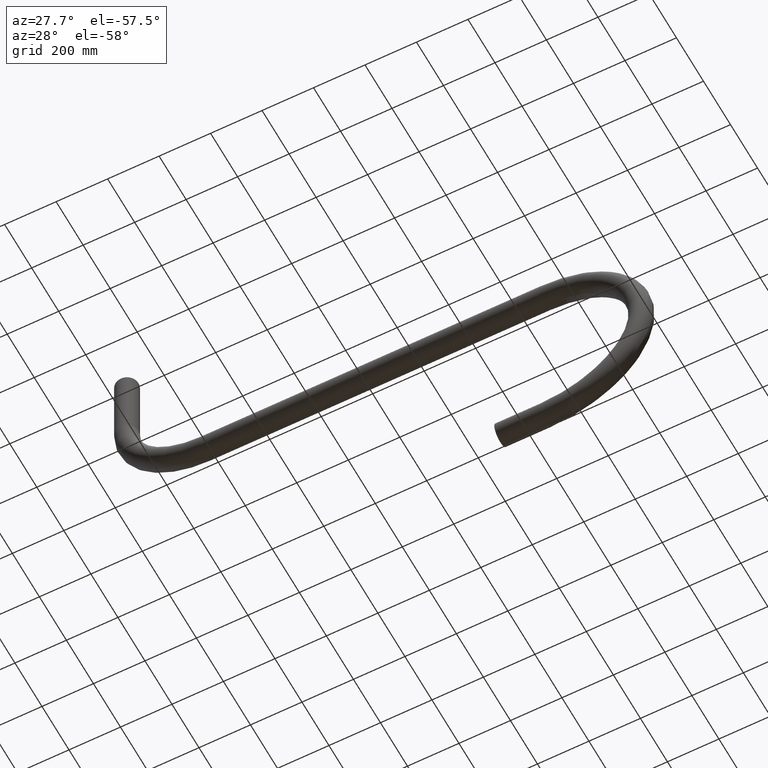
[diagram: clean part render]
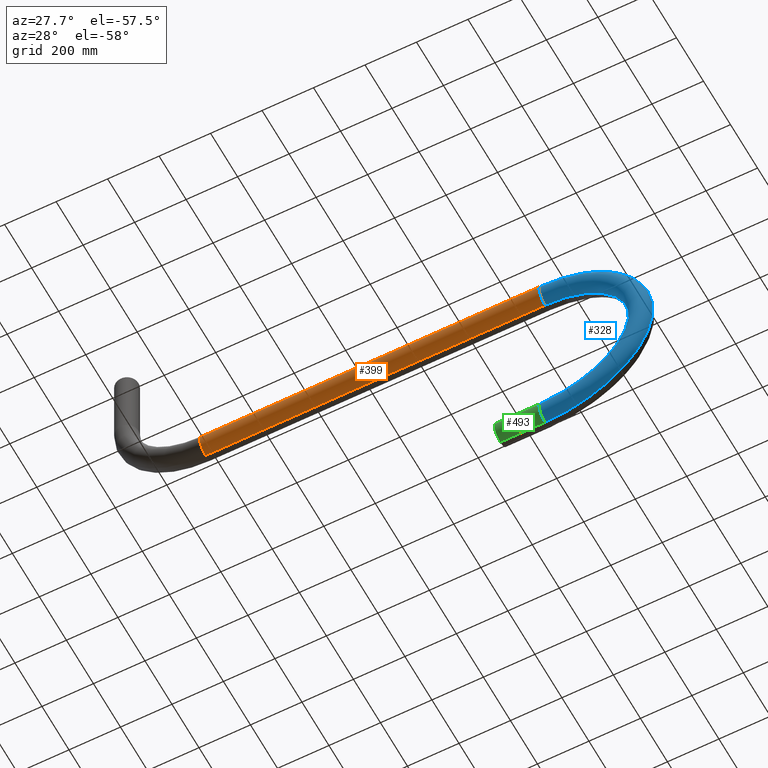
[diagram: same view with three faces highlighted in distinct colors, each labeled with its STEP entity id]
A machine part, auxiliary view with three faces highlighted in distinct colors.
Their STEP definitions:

[orange] entity #399 — the highlighted cylindrical surface (edge-blend (fillet) strip) has radius 44.45 mm, axis along (-1, -0, 0).
#11 = VERTEX_POINT ( 'NONE', #35 ) ;
#35 = CARTESIAN_POINT ( 'NONE',  ( -659.5000000000000000, 0.000000000000000000, 44.45000000000000995 ) ) ;
#51 = DIRECTION ( 'NONE',  ( 1.000000000000000000, 0.000000000000000000, -6.123233995736768501E-17 ) ) ;
#92 = DIRECTION ( 'NONE',  ( -1.000000000000000000, -0.000000000000000000, 6.123233995736768501E-17 ) ) ;
#107 = AXIS2_PLACEMENT_3D ( 'NONE', #354, #51, #348 ) ;
#120 = DIRECTION ( 'NONE',  ( -1.000000000000000000, -0.000000000000000000, 6.123233995736768501E-17 ) ) ;
#129 = VECTOR ( 'NONE', #120, 1000.000000000000000 ) ;
#131 = LINE ( 'NONE', #626, #129 ) ;
#134 = LINE ( 'NONE', #593, #526 ) ;
#136 = DIRECTION ( 'NONE',  ( 1.000000000000000000, 0.000000000000000000, -1.820037745287141918E-16 ) ) ;
#171 = FACE_OUTER_BOUND ( 'NONE', #235, .T. ) ;
#235 = EDGE_LOOP ( 'NONE', ( #556, #604, #302, #564 ) ) ;
#296 = VERTEX_POINT ( 'NONE', #312 ) ;
#302 = ORIENTED_EDGE ( 'NONE', *, *, #565, .T. ) ;
#312 = CARTESIAN_POINT ( 'NONE',  ( 659.5000000000000000, 0.000000000000000000, 44.44999999999995310 ) ) ;
#330 = DIRECTION ( 'NONE',  ( 0.000000000000000000, 0.000000000000000000, 1.000000000000000000 ) ) ;
#348 = DIRECTION ( 'NONE',  ( 0.000000000000000000, 0.000000000000000000, 1.000000000000000000 ) ) ;
#354 = CARTESIAN_POINT ( 'NONE',  ( 659.5000000000000000, 0.000000000000000000, -5.551115123125782702E-14 ) ) ;
#361 = CIRCLE ( 'NONE', #107, 44.45000000000000995 ) ;
#369 = VERTEX_POINT ( 'NONE', #424 ) ;
#378 = EDGE_CURVE ( 'NONE', #369, #459, #131, .T. ) ;
#381 = CYLINDRICAL_SURFACE ( 'NONE', #405, 44.45000000000000995 ) ;
#399 = ADVANCED_FACE ( 'NONE', ( #171 ), #381, .T. ) ;
#405 = AXIS2_PLACEMENT_3D ( 'NONE', #582, #622, #330 ) ;
#424 = CARTESIAN_POINT ( 'NONE',  ( 659.5000000000000000, 5.443555022209997530E-15, -44.45000000000006679 ) ) ;
#436 = CARTESIAN_POINT ( 'NONE',  ( -659.5000000000000000, 5.443555022209989642E-15, -44.45000000000000995 ) ) ;
#446 = DIRECTION ( 'NONE',  ( 0.000000000000000000, 0.000000000000000000, -1.000000000000000000 ) ) ;
#459 = VERTEX_POINT ( 'NONE', #436 ) ;
#487 = AXIS2_PLACEMENT_3D ( 'NONE', #597, #136, #446 ) ;
#492 = EDGE_CURVE ( 'NONE', #11, #459, #603, .T. ) ;
#526 = VECTOR ( 'NONE', #92, 1000.000000000000000 ) ;
#556 = ORIENTED_EDGE ( 'NONE', *, *, #378, .F. ) ;
#564 = ORIENTED_EDGE ( 'NONE', *, *, #492, .T. ) ;
#565 = EDGE_CURVE ( 'NONE', #296, #11, #134, .T. ) ;
#582 = CARTESIAN_POINT ( 'NONE',  ( 659.4999999999998863, 0.000000000000000000, -2.465190328815661892E-29 ) ) ;
#593 = CARTESIAN_POINT ( 'NONE',  ( 659.4999999999998863, 0.000000000000000000, 44.45000000000000995 ) ) ;
#597 = CARTESIAN_POINT ( 'NONE',  ( -659.5000000000000000, 0.000000000000000000, 0.000000000000000000 ) ) ;
#603 = CIRCLE ( 'NONE', #487, 44.45000000000000995 ) ;
#604 = ORIENTED_EDGE ( 'NONE', *, *, #654, .F. ) ;
#622 = DIRECTION ( 'NONE',  ( -1.000000000000000000, -0.000000000000000000, 6.123233995736768501E-17 ) ) ;
#626 = CARTESIAN_POINT ( 'NONE',  ( 659.4999999999998863, 5.443555022209984909E-15, -44.45000000000000995 ) ) ;
#654 = EDGE_CURVE ( 'NONE', #296, #369, #361, .T. ) ;

[blue] entity #328 — the highlighted toroidal blend (fillet) surface has major radius 375 mm and minor (blend) radius 44.45 mm.
#8 = EDGE_CURVE ( 'NONE', #515, #427, #243, .T. ) ;
#14 = EDGE_LOOP ( 'NONE', ( #60, #598, #172, #167 ) ) ;
#23 = TOROIDAL_SURFACE ( 'NONE', #53, 374.9999999999998863, 44.45000000000000995 ) ;
#51 = DIRECTION ( 'NONE',  ( 1.000000000000000000, 0.000000000000000000, -6.123233995736768501E-17 ) ) ;
#53 = AXIS2_PLACEMENT_3D ( 'NONE', #470, #228, #633 ) ;
#60 = ORIENTED_EDGE ( 'NONE', *, *, #168, .F. ) ;
#85 = CARTESIAN_POINT ( 'NONE',  ( 659.5000000000000000, 5.443555022209975442E-15, -705.5499999999998408 ) ) ;
#107 = AXIS2_PLACEMENT_3D ( 'NONE', #354, #51, #348 ) ;
#161 = AXIS2_PLACEMENT_3D ( 'NONE', #543, #237, #641 ) ;
#167 = ORIENTED_EDGE ( 'NONE', *, *, #8, .T. ) ;
#168 = EDGE_CURVE ( 'NONE', #296, #427, #648, .T. ) ;
#172 = ORIENTED_EDGE ( 'NONE', *, *, #513, .T. ) ;
#217 = CARTESIAN_POINT ( 'NONE',  ( 659.5000000000000000, 0.000000000000000000, -794.4499999999998181 ) ) ;
#228 = DIRECTION ( 'NONE',  ( -0.000000000000000000, 1.000000000000000000, -0.000000000000000000 ) ) ;
#237 = DIRECTION ( 'NONE',  ( -0.000000000000000000, 1.000000000000000000, -0.000000000000000000 ) ) ;
#240 = DIRECTION ( 'NONE',  ( 1.000000000000000000, -0.000000000000000000, -6.123233995736768501E-17 ) ) ;
#243 = CIRCLE ( 'NONE', #613, 44.44999999999998863 ) ;
#252 = CIRCLE ( 'NONE', #161, 330.5499999999998977 ) ;
#296 = VERTEX_POINT ( 'NONE', #312 ) ;
#312 = CARTESIAN_POINT ( 'NONE',  ( 659.5000000000000000, 0.000000000000000000, 44.44999999999995310 ) ) ;
#328 = ADVANCED_FACE ( 'NONE', ( #431 ), #23, .T. ) ;
#348 = DIRECTION ( 'NONE',  ( 0.000000000000000000, 0.000000000000000000, 1.000000000000000000 ) ) ;
#349 = DIRECTION ( 'NONE',  ( 0.000000000000000000, 0.000000000000000000, 1.000000000000000000 ) ) ;
#354 = CARTESIAN_POINT ( 'NONE',  ( 659.5000000000000000, 0.000000000000000000, -5.551115123125782702E-14 ) ) ;
#361 = CIRCLE ( 'NONE', #107, 44.45000000000000995 ) ;
#369 = VERTEX_POINT ( 'NONE', #424 ) ;
#393 = CARTESIAN_POINT ( 'NONE',  ( 659.5000000000000000, 0.000000000000000000, -749.9999999999997726 ) ) ;
#410 = DIRECTION ( 'NONE',  ( -0.000000000000000000, 1.000000000000000000, -0.000000000000000000 ) ) ;
#424 = CARTESIAN_POINT ( 'NONE',  ( 659.5000000000000000, 5.443555022209997530E-15, -44.45000000000006679 ) ) ;
#427 = VERTEX_POINT ( 'NONE', #217 ) ;
#431 = FACE_OUTER_BOUND ( 'NONE', #14, .T. ) ;
#470 = CARTESIAN_POINT ( 'NONE',  ( 659.5000000000000000, 0.000000000000000000, -374.9999999999999432 ) ) ;
#513 = EDGE_CURVE ( 'NONE', #369, #515, #252, .T. ) ;
#515 = VERTEX_POINT ( 'NONE', #85 ) ;
#543 = CARTESIAN_POINT ( 'NONE',  ( 659.5000000000000000, -5.443555022209986486E-15, -374.9999999999999432 ) ) ;
#557 = AXIS2_PLACEMENT_3D ( 'NONE', #607, #410, #349 ) ;
#596 = DIRECTION ( 'NONE',  ( 0.000000000000000000, 0.000000000000000000, 1.000000000000000000 ) ) ;
#598 = ORIENTED_EDGE ( 'NONE', *, *, #654, .T. ) ;
#607 = CARTESIAN_POINT ( 'NONE',  ( 659.5000000000000000, 0.000000000000000000, -374.9999999999999432 ) ) ;
#613 = AXIS2_PLACEMENT_3D ( 'NONE', #393, #240, #596 ) ;
#633 = DIRECTION ( 'NONE',  ( 0.000000000000000000, 0.000000000000000000, 1.000000000000000000 ) ) ;
#641 = DIRECTION ( 'NONE',  ( 0.000000000000000000, 0.000000000000000000, 1.000000000000000000 ) ) ;
#648 = CIRCLE ( 'NONE', #557, 419.4499999999998749 ) ;
#654 = EDGE_CURVE ( 'NONE', #296, #369, #361, .T. ) ;

[green] entity #493 — the highlighted cylindrical surface (edge-blend (fillet) strip) has radius 44.45 mm, axis along (1, -0, -0).
#8 = EDGE_CURVE ( 'NONE', #515, #427, #243, .T. ) ;
#36 = FACE_OUTER_BOUND ( 'NONE', #320, .T. ) ;
#58 = ORIENTED_EDGE ( 'NONE', *, *, #420, .F. ) ;
#68 = CARTESIAN_POINT ( 'NONE',  ( 485.5000000000002842, 5.443555022209986486E-15, -705.5499999999997272 ) ) ;
#85 = CARTESIAN_POINT ( 'NONE',  ( 659.5000000000000000, 5.443555022209975442E-15, -705.5499999999998408 ) ) ;
#102 = VERTEX_POINT ( 'NONE', #282 ) ;
#143 = CARTESIAN_POINT ( 'NONE',  ( 485.5000000000002842, 0.000000000000000000, -749.9999999999996589 ) ) ;
#193 = CARTESIAN_POINT ( 'NONE',  ( 485.5000000000002842, 0.000000000000000000, -749.9999999999996589 ) ) ;
#217 = CARTESIAN_POINT ( 'NONE',  ( 659.5000000000000000, 0.000000000000000000, -794.4499999999998181 ) ) ;
#240 = DIRECTION ( 'NONE',  ( 1.000000000000000000, -0.000000000000000000, -6.123233995736768501E-17 ) ) ;
#243 = CIRCLE ( 'NONE', #613, 44.44999999999998863 ) ;
#248 = ORIENTED_EDGE ( 'NONE', *, *, #8, .F. ) ;
#254 = ORIENTED_EDGE ( 'NONE', *, *, #279, .T. ) ;
#279 = EDGE_CURVE ( 'NONE', #627, #427, #418, .T. ) ;
#282 = CARTESIAN_POINT ( 'NONE',  ( 485.5000000000002842, 5.443555022209988853E-15, -705.5499999999997272 ) ) ;
#292 = DIRECTION ( 'NONE',  ( -1.000000000000000000, 0.000000000000000000, -6.123233995736763571E-17 ) ) ;
#293 = ORIENTED_EDGE ( 'NONE', *, *, #610, .F. ) ;
#320 = EDGE_LOOP ( 'NONE', ( #58, #293, #254, #248 ) ) ;
#340 = DIRECTION ( 'NONE',  ( 1.000000000000000000, -0.000000000000000000, -0.000000000000000000 ) ) ;
#386 = CYLINDRICAL_SURFACE ( 'NONE', #425, 44.44999999999998863 ) ;
#393 = CARTESIAN_POINT ( 'NONE',  ( 659.5000000000000000, 0.000000000000000000, -749.9999999999997726 ) ) ;
#396 = AXIS2_PLACEMENT_3D ( 'NONE', #193, #292, #494 ) ;
#406 = CARTESIAN_POINT ( 'NONE',  ( 485.5000000000002842, 0.000000000000000000, -794.4499999999997044 ) ) ;
#418 = LINE ( 'NONE', #617, #464 ) ;
#420 = EDGE_CURVE ( 'NONE', #102, #515, #467, .T. ) ;
#425 = AXIS2_PLACEMENT_3D ( 'NONE', #143, #340, #545 ) ;
#427 = VERTEX_POINT ( 'NONE', #217 ) ;
#464 = VECTOR ( 'NONE', #611, 1000.000000000000000 ) ;
#467 = LINE ( 'NONE', #68, #538 ) ;
#493 = ADVANCED_FACE ( 'NONE', ( #36 ), #386, .T. ) ;
#494 = DIRECTION ( 'NONE',  ( 0.000000000000000000, 0.000000000000000000, 1.000000000000000000 ) ) ;
#497 = CIRCLE ( 'NONE', #396, 44.44999999999998863 ) ;
#515 = VERTEX_POINT ( 'NONE', #85 ) ;
#538 = VECTOR ( 'NONE', #573, 1000.000000000000000 ) ;
#545 = DIRECTION ( 'NONE',  ( 0.000000000000000000, 0.000000000000000000, -1.000000000000000000 ) ) ;
#573 = DIRECTION ( 'NONE',  ( 1.000000000000000000, -0.000000000000000000, -0.000000000000000000 ) ) ;
#596 = DIRECTION ( 'NONE',  ( 0.000000000000000000, 0.000000000000000000, 1.000000000000000000 ) ) ;
#610 = EDGE_CURVE ( 'NONE', #627, #102, #497, .T. ) ;
#611 = DIRECTION ( 'NONE',  ( 1.000000000000000000, -0.000000000000000000, -0.000000000000000000 ) ) ;
#613 = AXIS2_PLACEMENT_3D ( 'NONE', #393, #240, #596 ) ;
#617 = CARTESIAN_POINT ( 'NONE',  ( 485.5000000000002842, 0.000000000000000000, -794.4499999999997044 ) ) ;
#627 = VERTEX_POINT ( 'NONE', #406 ) ;